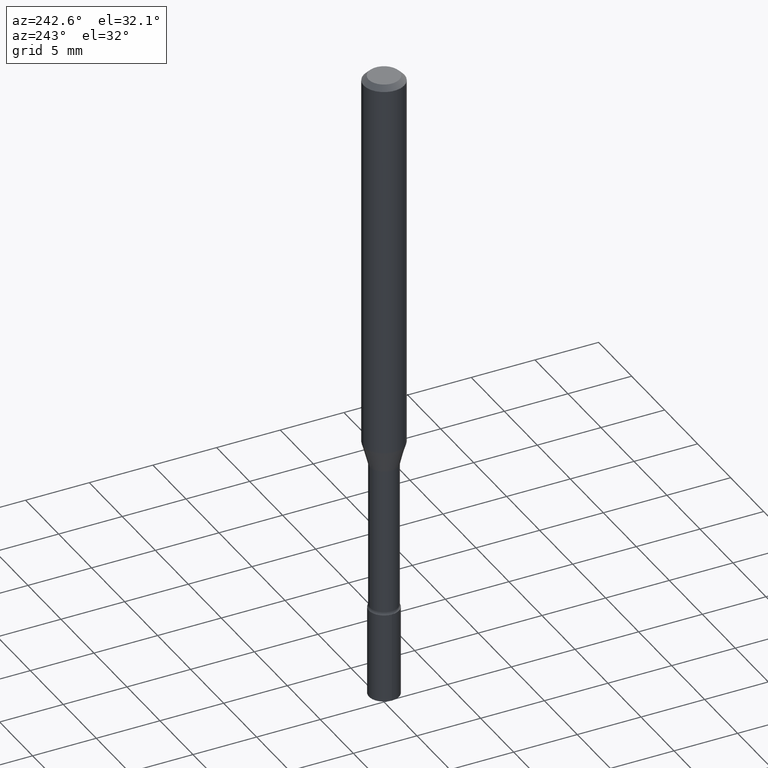
[diagram: clean part render]
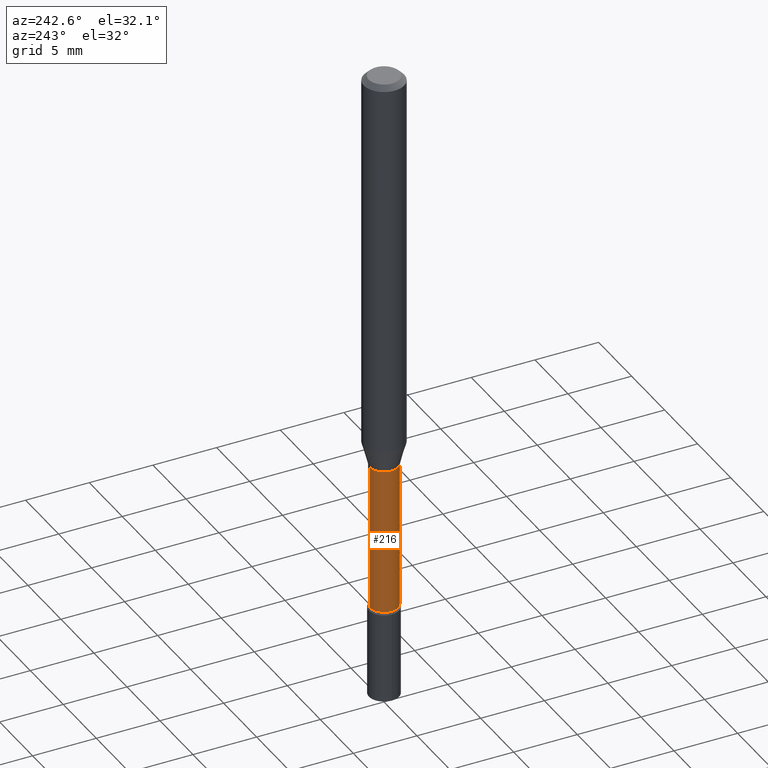
[diagram: same view with one face highlighted and labeled with its STEP entity id]
A machine part, auxiliary view. The second image highlights one B-rep face of the part: STEP entity #216.
In plain terms, the highlighted cylindrical surface (edge-blend (fillet) strip) has radius 1.11 mm, axis along (-0, 0, 1).
Its self-contained STEP definition (entity closure, byte-faithful):
#20 = CARTESIAN_POINT ( 'NONE',  ( 4.187330458508121019E-29, -5.978340440266618372E-15, -1.712273030308291366 ) ) ;
#26 = ORIENTED_EDGE ( 'NONE', *, *, #271, .F. ) ;
#47 = CIRCLE ( 'NONE', #458, 0.04370000000000001661 ) ;
#58 = EDGE_CURVE ( 'NONE', #289, #247, #476, .T. ) ;
#63 = CARTESIAN_POINT ( 'NONE',  ( 3.076352924062631068E-29, -4.392174268712645815E-15, -1.257974787463810973 ) ) ;
#64 = AXIS2_PLACEMENT_3D ( 'NONE', #324, #274, #268 ) ;
#72 = AXIS2_PLACEMENT_3D ( 'NONE', #20, #256, #106 ) ;
#76 = DIRECTION ( 'NONE',  ( -2.445480588895451802E-29, 3.491464465331343396E-15, 1.000000000000000000 ) ) ;
#95 = DIRECTION ( 'NONE',  ( -2.445480588895451802E-29, 3.491464465331343396E-15, 1.000000000000000000 ) ) ;
#102 = CARTESIAN_POINT ( 'NONE',  ( -3.051554690148591516E-16, -0.04370000000000440893, -1.257974787463810751 ) ) ;
#106 = DIRECTION ( 'NONE',  ( -6.982962677686264344E-15, -1.000000000000000000, 6.251368406554373050E-15 ) ) ;
#141 = ORIENTED_EDGE ( 'NONE', *, *, #58, .F. ) ;
#158 = EDGE_CURVE ( 'NONE', #343, #213, #290, .T. ) ;
#172 = VECTOR ( 'NONE', #76, 39.37007874015748143 ) ;
#181 = DIRECTION ( 'NONE',  ( -2.445480588895451802E-29, 3.491464465331343790E-15, 1.000000000000000000 ) ) ;
#209 = ORIENTED_EDGE ( 'NONE', *, *, #318, .T. ) ;
#213 = VERTEX_POINT ( 'NONE', #102 ) ;
#216 = ADVANCED_FACE ( 'NONE', ( #380 ), #514, .T. ) ;
#218 = CARTESIAN_POINT ( 'NONE',  ( -3.051554690148482062E-16, -0.04370000000000601181, -1.712273030308291144 ) ) ;
#247 = VERTEX_POINT ( 'NONE', #336 ) ;
#256 = DIRECTION ( 'NONE',  ( -2.445480588895451802E-29, 3.491464465331343790E-15, 1.000000000000000000 ) ) ;
#268 = DIRECTION ( 'NONE',  ( -6.982962677686265133E-15, -1.000000000000000000, 3.491464465331344185E-15 ) ) ;
#271 = EDGE_CURVE ( 'NONE', #247, #213, #47, .T. ) ;
#274 = DIRECTION ( 'NONE',  ( -2.445480588895451802E-29, 3.491464465331343790E-15, 1.000000000000000000 ) ) ;
#289 = VERTEX_POINT ( 'NONE', #474 ) ;
#290 = LINE ( 'NONE', #460, #516 ) ;
#292 = CIRCLE ( 'NONE', #72, 0.04370000000000003743 ) ;
#298 = ORIENTED_EDGE ( 'NONE', *, *, #158, .T. ) ;
#318 = EDGE_CURVE ( 'NONE', #289, #343, #292, .T. ) ;
#324 = CARTESIAN_POINT ( 'NONE',  ( 0.000000000000000000, 0.000000000000000000, 0.000000000000000000 ) ) ;
#336 = CARTESIAN_POINT ( 'NONE',  ( 3.105071755272057582E-16, 0.04369999999999563123, -1.257974787463811195 ) ) ;
#343 = VERTEX_POINT ( 'NONE', #218 ) ;
#380 = FACE_OUTER_BOUND ( 'NONE', #387, .T. ) ;
#387 = EDGE_LOOP ( 'NONE', ( #141, #209, #298, #26 ) ) ;
#391 = DIRECTION ( 'NONE',  ( -6.982962677686265133E-15, -1.000000000000000000, 6.251368406554375417E-15 ) ) ;
#392 = CARTESIAN_POINT ( 'NONE',  ( 3.105071755271638992E-16, 0.04370000000000002355, -1.525769971349798148E-16 ) ) ;
#458 = AXIS2_PLACEMENT_3D ( 'NONE', #63, #181, #391 ) ;
#460 = CARTESIAN_POINT ( 'NONE',  ( -3.051554690148899665E-16, -0.04370000000000002355, 1.525769971349798148E-16 ) ) ;
#474 = CARTESIAN_POINT ( 'NONE',  ( 3.204547738278472978E-16, 0.04369999999999405610, -1.712273030308291810 ) ) ;
#476 = LINE ( 'NONE', #392, #172 ) ;
#514 = CYLINDRICAL_SURFACE ( 'NONE', #64, 0.04370000000000002355 ) ;
#516 = VECTOR ( 'NONE', #95, 39.37007874015748143 ) ;